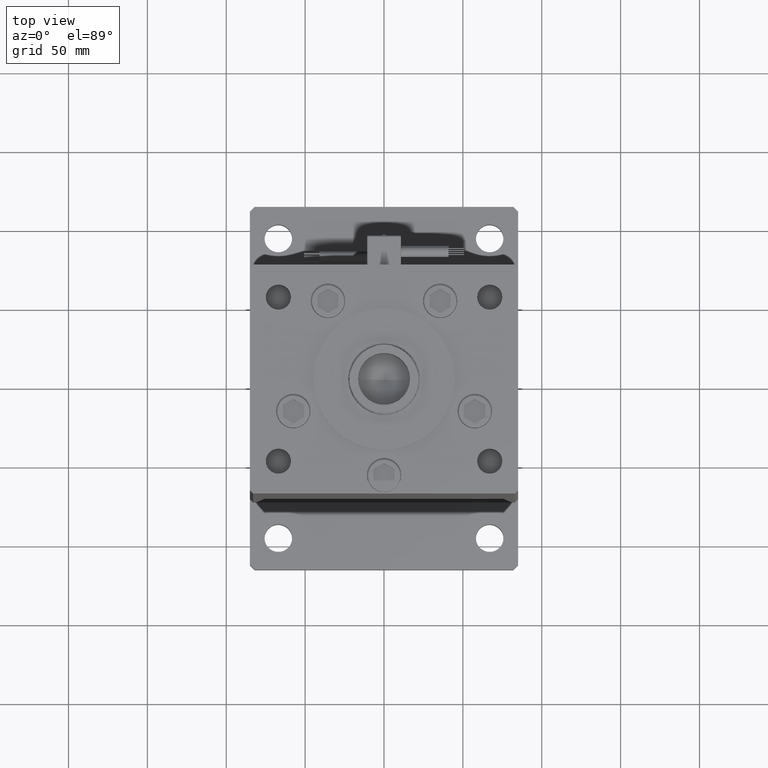
[diagram: clean part render]
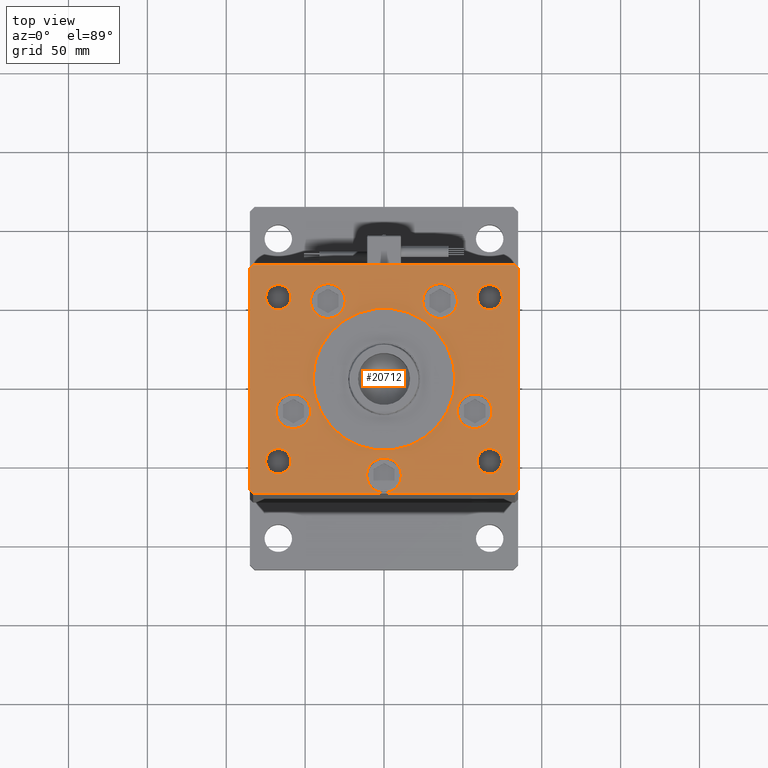
[diagram: same view with one face highlighted and labeled with its STEP entity id]
A machine part, top view. The second image highlights one B-rep face of the part: STEP entity #20712.
In plain terms, the highlighted planar face has unit normal (0, 0, 1).
Its self-contained STEP definition (entity closure, byte-faithful):
#442 = DIRECTION ( 'NONE',  ( 0.000000000000000000, 1.000000000000000000, 0.000000000000000000 ) ) ;
#699 = CARTESIAN_POINT ( 'NONE',  ( -85.00000000000000000, 70.50000000000000000, 0.000000000000000000 ) ) ;
#1065 = CARTESIAN_POINT ( 'NONE',  ( -67.00000000000000000, -52.00000000000000711, 0.000000000000000000 ) ) ;
#1173 = EDGE_CURVE ( 'NONE', #25591, #26150, #37152, .T. ) ;
#1296 = FACE_BOUND ( 'NONE', #20714, .T. ) ;
#1529 = EDGE_LOOP ( 'NONE', ( #56427, #34696 ) ) ;
#1839 = CARTESIAN_POINT ( 'NONE',  ( -75.00000000000000000, -52.00000000000000711, 0.000000000000000000 ) ) ;
#1942 = DIRECTION ( 'NONE',  ( -0.7071067811865500152, 0.7071067811865451302, 0.000000000000000000 ) ) ;
#1954 = CARTESIAN_POINT ( 'NONE',  ( -83.00000000000001421, -72.50000000000004263, 0.000000000000000000 ) ) ;
#2006 = DIRECTION ( 'NONE',  ( 1.000000000000000000, 0.000000000000000000, 0.000000000000000000 ) ) ;
#2335 = EDGE_CURVE ( 'NONE', #49212, #42821, #39897, .T. ) ;
#2619 = VECTOR ( 'NONE', #23576, 1000.000000000000000 ) ;
#3224 = AXIS2_PLACEMENT_3D ( 'NONE', #47238, #46953, #42116 ) ;
#3303 = CIRCLE ( 'NONE', #35163, 8.000000000000000000 ) ;
#3362 = EDGE_CURVE ( 'NONE', #26391, #38375, #32176, .T. ) ;
#3395 = DIRECTION ( 'NONE',  ( -1.000000000000000000, 0.000000000000000000, 0.000000000000000000 ) ) ;
#3400 = LINE ( 'NONE', #4231, #9441 ) ;
#3614 = CIRCLE ( 'NONE', #30939, 45.00000000000000711 ) ;
#3973 = ORIENTED_EDGE ( 'NONE', *, *, #10430, .F. ) ;
#4231 = CARTESIAN_POINT ( 'NONE',  ( -82.99999999999998579, 72.49999999999998579, 0.000000000000000000 ) ) ;
#4471 = VECTOR ( 'NONE', #442, 1000.000000000000000 ) ;
#4727 = DIRECTION ( 'NONE',  ( 1.000000000000000000, 0.000000000000000000, 0.000000000000000000 ) ) ;
#5238 = CARTESIAN_POINT ( 'NONE',  ( 45.00000000000000711, -1.427983307744138033E-15, 0.000000000000000000 ) ) ;
#5486 = CARTESIAN_POINT ( 'NONE',  ( -46.56063263990113654, 49.56249999999997868, 0.000000000000000000 ) ) ;
#5493 = DIRECTION ( 'NONE',  ( 0.7071067811865474617, -0.7071067811865474617, 0.000000000000000000 ) ) ;
#6218 = VERTEX_POINT ( 'NONE', #1839 ) ;
#6237 = AXIS2_PLACEMENT_3D ( 'NONE', #12251, #28532, #6854 ) ;
#6724 = CIRCLE ( 'NONE', #28598, 8.000000000000007105 ) ;
#6854 = DIRECTION ( 'NONE',  ( 1.000000000000000000, 0.000000000000000000, 0.000000000000000000 ) ) ;
#7080 = CIRCLE ( 'NONE', #20775, 11.00000000000000000 ) ;
#7280 = CARTESIAN_POINT ( 'NONE',  ( 59.00000000000000000, -52.00000000000000711, 0.000000000000000000 ) ) ;
#7405 = VERTEX_POINT ( 'NONE', #49805 ) ;
#7486 = EDGE_CURVE ( 'NONE', #56016, #6218, #20982, .T. ) ;
#7557 = DIRECTION ( 'NONE',  ( 0.000000000000000000, 0.000000000000000000, 1.000000000000000000 ) ) ;
#7803 = ORIENTED_EDGE ( 'NONE', *, *, #12378, .T. ) ;
#8156 = CARTESIAN_POINT ( 'NONE',  ( -24.56063263990113299, 49.56249999999997868, 0.000000000000000000 ) ) ;
#8394 = EDGE_CURVE ( 'NONE', #53812, #15145, #10054, .T. ) ;
#8670 = CARTESIAN_POINT ( 'NONE',  ( -45.00000000000000711, -6.938893903907228378E-15, 0.000000000000000000 ) ) ;
#8973 = DIRECTION ( 'NONE',  ( 0.000000000000000000, 0.000000000000000000, 1.000000000000000000 ) ) ;
#9117 = VERTEX_POINT ( 'NONE', #51644 ) ;
#9290 = FACE_BOUND ( 'NONE', #19258, .T. ) ;
#9441 = VECTOR ( 'NONE', #51575, 1000.000000000000000 ) ;
#9794 = VERTEX_POINT ( 'NONE', #29995 ) ;
#9852 = VERTEX_POINT ( 'NONE', #26534 ) ;
#10043 = ORIENTED_EDGE ( 'NONE', *, *, #54907, .F. ) ;
#10054 = CIRCLE ( 'NONE', #52877, 10.99999999999999645 ) ;
#10420 = CIRCLE ( 'NONE', #36856, 10.99999999999999645 ) ;
#10430 = EDGE_CURVE ( 'NONE', #15145, #53812, #43845, .T. ) ;
#10709 = ORIENTED_EDGE ( 'NONE', *, *, #1173, .F. ) ;
#10766 = DIRECTION ( 'NONE',  ( 1.000000000000000000, 0.000000000000000000, 0.000000000000000000 ) ) ;
#10781 = LINE ( 'NONE', #23612, #16889 ) ;
#10865 = CARTESIAN_POINT ( 'NONE',  ( -75.00000000000000000, 52.00000000000001421, 0.000000000000000000 ) ) ;
#11308 = DIRECTION ( 'NONE',  ( 0.000000000000000000, 0.000000000000000000, 1.000000000000000000 ) ) ;
#11455 = ORIENTED_EDGE ( 'NONE', *, *, #15481, .T. ) ;
#11545 = EDGE_CURVE ( 'NONE', #40851, #21807, #47667, .T. ) ;
#11843 = DIRECTION ( 'NONE',  ( 1.000000000000000000, 0.000000000000000000, 0.000000000000000000 ) ) ;
#12251 = CARTESIAN_POINT ( 'NONE',  ( -35.56063263990113654, 49.56249999999997868, 0.000000000000000000 ) ) ;
#12378 = EDGE_CURVE ( 'NONE', #32881, #54691, #10781, .T. ) ;
#12721 = EDGE_CURVE ( 'NONE', #9852, #21651, #41136, .T. ) ;
#13139 = CARTESIAN_POINT ( 'NONE',  ( 68.51135153650587029, -20.33333333333332504, 0.000000000000000000 ) ) ;
#13907 = AXIS2_PLACEMENT_3D ( 'NONE', #28523, #45639, #2006 ) ;
#14123 = FACE_BOUND ( 'NONE', #24548, .T. ) ;
#14500 = DIRECTION ( 'NONE',  ( 1.000000000000000000, 5.852079196066335998E-16, 0.000000000000000000 ) ) ;
#14783 = ORIENTED_EDGE ( 'NONE', *, *, #36910, .F. ) ;
#14854 = DIRECTION ( 'NONE',  ( 1.000000000000000000, 0.000000000000000000, 0.000000000000000000 ) ) ;
#14897 = ORIENTED_EDGE ( 'NONE', *, *, #45119, .T. ) ;
#15145 = VERTEX_POINT ( 'NONE', #13139 ) ;
#15481 = EDGE_CURVE ( 'NONE', #21651, #9852, #35738, .T. ) ;
#15504 = ORIENTED_EDGE ( 'NONE', *, *, #35463, .F. ) ;
#15743 = VERTEX_POINT ( 'NONE', #29849 ) ;
#16082 = DIRECTION ( 'NONE',  ( 1.000000000000000000, 0.000000000000000000, 0.000000000000000000 ) ) ;
#16292 = AXIS2_PLACEMENT_3D ( 'NONE', #28708, #11308, #28137 ) ;
#16889 = VECTOR ( 'NONE', #1942, 1000.000000000000114 ) ;
#17212 = ORIENTED_EDGE ( 'NONE', *, *, #44486, .F. ) ;
#17615 = AXIS2_PLACEMENT_3D ( 'NONE', #20959, #34062, #39669 ) ;
#18158 = EDGE_CURVE ( 'NONE', #47960, #38260, #21275, .T. ) ;
#18446 = DIRECTION ( 'NONE',  ( 0.000000000000000000, 0.000000000000000000, 1.000000000000000000 ) ) ;
#18692 = DIRECTION ( 'NONE',  ( 1.000000000000000000, 0.000000000000000000, 0.000000000000000000 ) ) ;
#18716 = DIRECTION ( 'NONE',  ( 1.000000000000000000, 0.000000000000000000, 0.000000000000000000 ) ) ;
#18725 = LINE ( 'NONE', #53228, #2619 ) ;
#18882 = ORIENTED_EDGE ( 'NONE', *, *, #2335, .F. ) ;
#19140 = AXIS2_PLACEMENT_3D ( 'NONE', #40395, #36971, #18716 ) ;
#19149 = EDGE_CURVE ( 'NONE', #15743, #7405, #6724, .T. ) ;
#19258 = EDGE_LOOP ( 'NONE', ( #18882, #15504 ) ) ;
#19998 = CIRCLE ( 'NONE', #47310, 7.999999999999992895 ) ;
#20008 = CARTESIAN_POINT ( 'NONE',  ( 83.00000000000001421, 72.50000000000002842, 0.000000000000000000 ) ) ;
#20563 = EDGE_CURVE ( 'NONE', #54480, #23411, #10420, .T. ) ;
#20712 = ADVANCED_FACE ( 'NONE', ( #48361, #9290, #26121, #1296, #26678, #44638, #30966, #14123, #22958, #35790, #30687 ), #43802, .T. ) ;
#20714 = EDGE_LOOP ( 'NONE', ( #3973, #29125 ) ) ;
#20775 = AXIS2_PLACEMENT_3D ( 'NONE', #22362, #8973, #35196 ) ;
#20959 = CARTESIAN_POINT ( 'NONE',  ( 0.000000000000000000, -6.938893903907228378E-15, 0.000000000000000000 ) ) ;
#20982 = CIRCLE ( 'NONE', #19140, 8.000000000000000000 ) ;
#21038 = DIRECTION ( 'NONE',  ( 0.000000000000000000, 0.000000000000000000, 1.000000000000000000 ) ) ;
#21248 = ORIENTED_EDGE ( 'NONE', *, *, #37361, .T. ) ;
#21275 = CIRCLE ( 'NONE', #53117, 7.999999999999992895 ) ;
#21429 = CARTESIAN_POINT ( 'NONE',  ( 83.00000000000001421, -72.49999999999994316, 0.000000000000000000 ) ) ;
#21557 = DIRECTION ( 'NONE',  ( 1.000000000000000000, 0.000000000000000000, 0.000000000000000000 ) ) ;
#21651 = VERTEX_POINT ( 'NONE', #7280 ) ;
#21807 = VERTEX_POINT ( 'NONE', #8670 ) ;
#22012 = DIRECTION ( 'NONE',  ( -1.000000000000000000, 0.000000000000000000, 0.000000000000000000 ) ) ;
#22277 = AXIS2_PLACEMENT_3D ( 'NONE', #36073, #39520, #4727 ) ;
#22289 = DIRECTION ( 'NONE',  ( -0.000000000000000000, -0.000000000000000000, -1.000000000000000000 ) ) ;
#22362 = CARTESIAN_POINT ( 'NONE',  ( 0.000000000000000000, -61.00000000000000000, 0.000000000000000000 ) ) ;
#22641 = VECTOR ( 'NONE', #14500, 1000.000000000000000 ) ;
#22958 = FACE_BOUND ( 'NONE', #52234, .T. ) ;
#22971 = DIRECTION ( 'NONE',  ( 0.000000000000000000, 0.000000000000000000, 1.000000000000000000 ) ) ;
#23024 = CIRCLE ( 'NONE', #13907, 11.00000000000000355 ) ;
#23232 = AXIS2_PLACEMENT_3D ( 'NONE', #31686, #40807, #14854 ) ;
#23411 = VERTEX_POINT ( 'NONE', #23584 ) ;
#23576 = DIRECTION ( 'NONE',  ( 0.000000000000000000, -1.000000000000000000, 0.000000000000000000 ) ) ;
#23584 = CARTESIAN_POINT ( 'NONE',  ( -46.51135153650587029, -20.33333333333332504, 0.000000000000000000 ) ) ;
#23612 = CARTESIAN_POINT ( 'NONE',  ( 85.00000000000001421, 70.50000000000002842, 0.000000000000000000 ) ) ;
#24103 = EDGE_LOOP ( 'NONE', ( #55063, #54837, #24528, #47670, #7803, #47406, #14897, #53020 ) ) ;
#24528 = ORIENTED_EDGE ( 'NONE', *, *, #49601, .T. ) ;
#24548 = EDGE_LOOP ( 'NONE', ( #43374, #17212 ) ) ;
#24926 = VECTOR ( 'NONE', #39651, 1000.000000000000114 ) ;
#25591 = VERTEX_POINT ( 'NONE', #56015 ) ;
#25823 = CARTESIAN_POINT ( 'NONE',  ( 57.51135153650587029, -20.33333333333332504, 0.000000000000000000 ) ) ;
#25867 = CARTESIAN_POINT ( 'NONE',  ( 67.00000000000000000, 52.00000000000000000, 0.000000000000000000 ) ) ;
#26121 = FACE_BOUND ( 'NONE', #1529, .T. ) ;
#26150 = VERTEX_POINT ( 'NONE', #26623 ) ;
#26275 = ORIENTED_EDGE ( 'NONE', *, *, #18158, .T. ) ;
#26283 = CARTESIAN_POINT ( 'NONE',  ( 67.00000000000000000, -52.00000000000000711, 0.000000000000000000 ) ) ;
#26331 = CARTESIAN_POINT ( 'NONE',  ( 57.51135153650587029, -20.33333333333332504, 0.000000000000000000 ) ) ;
#26391 = VERTEX_POINT ( 'NONE', #50847 ) ;
#26534 = CARTESIAN_POINT ( 'NONE',  ( 75.00000000000001421, -52.00000000000000711, 0.000000000000000000 ) ) ;
#26598 = EDGE_CURVE ( 'NONE', #9794, #9117, #38754, .T. ) ;
#26623 = CARTESIAN_POINT ( 'NONE',  ( 11.00000000000000000, -61.00000000000000000, 0.000000000000000000 ) ) ;
#26678 = FACE_BOUND ( 'NONE', #45452, .T. ) ;
#27176 = LINE ( 'NONE', #44575, #55805 ) ;
#27442 = VERTEX_POINT ( 'NONE', #41673 ) ;
#28137 = DIRECTION ( 'NONE',  ( 1.000000000000000000, 0.000000000000000000, 0.000000000000000000 ) ) ;
#28207 = CARTESIAN_POINT ( 'NONE',  ( -59.00000000000000711, 52.00000000000001421, 0.000000000000000000 ) ) ;
#28523 = CARTESIAN_POINT ( 'NONE',  ( 35.56063263990113654, 49.56249999999997868, 0.000000000000000000 ) ) ;
#28532 = DIRECTION ( 'NONE',  ( 0.000000000000000000, 0.000000000000000000, 1.000000000000000000 ) ) ;
#28598 = AXIS2_PLACEMENT_3D ( 'NONE', #25867, #21038, #43265 ) ;
#28708 = CARTESIAN_POINT ( 'NONE',  ( -35.56063263990113654, 49.56249999999997868, 0.000000000000000000 ) ) ;
#29125 = ORIENTED_EDGE ( 'NONE', *, *, #8394, .F. ) ;
#29297 = AXIS2_PLACEMENT_3D ( 'NONE', #26283, #22289, #22012 ) ;
#29607 = CIRCLE ( 'NONE', #3224, 10.99999999999999645 ) ;
#29849 = CARTESIAN_POINT ( 'NONE',  ( 75.00000000000001421, 52.00000000000000000, 0.000000000000000000 ) ) ;
#29995 = CARTESIAN_POINT ( 'NONE',  ( 46.56063263990113654, 49.56249999999997868, 0.000000000000000000 ) ) ;
#30687 = FACE_BOUND ( 'NONE', #34881, .T. ) ;
#30939 = AXIS2_PLACEMENT_3D ( 'NONE', #46637, #7557, #11843 ) ;
#30966 = FACE_BOUND ( 'NONE', #50703, .T. ) ;
#31686 = CARTESIAN_POINT ( 'NONE',  ( 35.56063263990113654, 49.56249999999997868, 0.000000000000000000 ) ) ;
#32176 = LINE ( 'NONE', #1954, #22641 ) ;
#32465 = VERTEX_POINT ( 'NONE', #55193 ) ;
#32532 = EDGE_CURVE ( 'NONE', #26150, #25591, #7080, .T. ) ;
#32881 = VERTEX_POINT ( 'NONE', #36250 ) ;
#33093 = DIRECTION ( 'NONE',  ( -0.000000000000000000, -0.000000000000000000, -1.000000000000000000 ) ) ;
#34062 = DIRECTION ( 'NONE',  ( 0.000000000000000000, 0.000000000000000000, 1.000000000000000000 ) ) ;
#34408 = AXIS2_PLACEMENT_3D ( 'NONE', #37751, #55139, #16082 ) ;
#34696 = ORIENTED_EDGE ( 'NONE', *, *, #47197, .F. ) ;
#34881 = EDGE_LOOP ( 'NONE', ( #47323, #11455 ) ) ;
#35163 = AXIS2_PLACEMENT_3D ( 'NONE', #1065, #18446, #52205 ) ;
#35196 = DIRECTION ( 'NONE',  ( 1.000000000000000000, 0.000000000000000000, 0.000000000000000000 ) ) ;
#35320 = DIRECTION ( 'NONE',  ( -1.000000000000000000, 0.000000000000000000, 0.000000000000000000 ) ) ;
#35399 = EDGE_CURVE ( 'NONE', #40839, #32465, #18725, .T. ) ;
#35463 = EDGE_CURVE ( 'NONE', #42821, #49212, #40870, .T. ) ;
#35732 = EDGE_CURVE ( 'NONE', #27442, #32881, #36337, .T. ) ;
#35738 = CIRCLE ( 'NONE', #52122, 8.000000000000007105 ) ;
#35790 = FACE_OUTER_BOUND ( 'NONE', #24103, .T. ) ;
#36073 = CARTESIAN_POINT ( 'NONE',  ( 0.000000000000000000, 0.000000000000000000, 0.000000000000000000 ) ) ;
#36250 = CARTESIAN_POINT ( 'NONE',  ( 85.00000000000001421, 70.50000000000002842, 0.000000000000000000 ) ) ;
#36337 = LINE ( 'NONE', #48899, #4471 ) ;
#36856 = AXIS2_PLACEMENT_3D ( 'NONE', #54386, #54674, #10766 ) ;
#36910 = EDGE_CURVE ( 'NONE', #21807, #40851, #3614, .T. ) ;
#36971 = DIRECTION ( 'NONE',  ( 0.000000000000000000, 0.000000000000000000, 1.000000000000000000 ) ) ;
#37152 = CIRCLE ( 'NONE', #34408, 11.00000000000000000 ) ;
#37182 = ORIENTED_EDGE ( 'NONE', *, *, #7486, .F. ) ;
#37361 = EDGE_CURVE ( 'NONE', #38260, #47960, #19998, .T. ) ;
#37508 = AXIS2_PLACEMENT_3D ( 'NONE', #26331, #39174, #44006 ) ;
#37751 = CARTESIAN_POINT ( 'NONE',  ( 0.000000000000000000, -61.00000000000000000, 0.000000000000000000 ) ) ;
#38185 = DIRECTION ( 'NONE',  ( -0.000000000000000000, -0.000000000000000000, -1.000000000000000000 ) ) ;
#38260 = VERTEX_POINT ( 'NONE', #10865 ) ;
#38375 = VERTEX_POINT ( 'NONE', #51057 ) ;
#38464 = CARTESIAN_POINT ( 'NONE',  ( -59.00000000000000711, -52.00000000000000711, 0.000000000000000000 ) ) ;
#38754 = CIRCLE ( 'NONE', #23232, 11.00000000000000355 ) ;
#38816 = LINE ( 'NONE', #21429, #24926 ) ;
#39174 = DIRECTION ( 'NONE',  ( 0.000000000000000000, 0.000000000000000000, 1.000000000000000000 ) ) ;
#39226 = CARTESIAN_POINT ( 'NONE',  ( -68.51135153650587029, -20.33333333333332504, 0.000000000000000000 ) ) ;
#39520 = DIRECTION ( 'NONE',  ( -0.000000000000000000, 0.000000000000000000, 1.000000000000000000 ) ) ;
#39602 = DIRECTION ( 'NONE',  ( -0.000000000000000000, -0.000000000000000000, -1.000000000000000000 ) ) ;
#39651 = DIRECTION ( 'NONE',  ( 0.7071067811865474617, 0.7071067811865474617, 0.000000000000000000 ) ) ;
#39669 = DIRECTION ( 'NONE',  ( 1.000000000000000000, 0.000000000000000000, 0.000000000000000000 ) ) ;
#39809 = CARTESIAN_POINT ( 'NONE',  ( 67.00000000000000000, 52.00000000000000000, 0.000000000000000000 ) ) ;
#39897 = CIRCLE ( 'NONE', #6237, 11.00000000000000000 ) ;
#40178 = VECTOR ( 'NONE', #55356, 1000.000000000000000 ) ;
#40395 = CARTESIAN_POINT ( 'NONE',  ( -67.00000000000000000, -52.00000000000000711, 0.000000000000000000 ) ) ;
#40807 = DIRECTION ( 'NONE',  ( 0.000000000000000000, 0.000000000000000000, 1.000000000000000000 ) ) ;
#40839 = VERTEX_POINT ( 'NONE', #699 ) ;
#40851 = VERTEX_POINT ( 'NONE', #5238 ) ;
#40870 = CIRCLE ( 'NONE', #16292, 11.00000000000000000 ) ;
#41136 = CIRCLE ( 'NONE', #29297, 8.000000000000007105 ) ;
#41673 = CARTESIAN_POINT ( 'NONE',  ( 85.00000000000001421, -70.49999999999994316, 0.000000000000000000 ) ) ;
#42116 = DIRECTION ( 'NONE',  ( 1.000000000000000000, 0.000000000000000000, 0.000000000000000000 ) ) ;
#42261 = EDGE_CURVE ( 'NONE', #54691, #53355, #45957, .T. ) ;
#42821 = VERTEX_POINT ( 'NONE', #5486 ) ;
#43055 = ORIENTED_EDGE ( 'NONE', *, *, #32532, .F. ) ;
#43221 = DIRECTION ( 'NONE',  ( 0.000000000000000000, 0.000000000000000000, 1.000000000000000000 ) ) ;
#43265 = DIRECTION ( 'NONE',  ( 1.000000000000000000, 0.000000000000000000, 0.000000000000000000 ) ) ;
#43374 = ORIENTED_EDGE ( 'NONE', *, *, #19149, .F. ) ;
#43802 = PLANE ( 'NONE',  #22277 ) ;
#43845 = CIRCLE ( 'NONE', #37508, 10.99999999999999645 ) ;
#44006 = DIRECTION ( 'NONE',  ( 1.000000000000000000, 0.000000000000000000, 0.000000000000000000 ) ) ;
#44486 = EDGE_CURVE ( 'NONE', #7405, #15743, #55850, .T. ) ;
#44575 = CARTESIAN_POINT ( 'NONE',  ( -85.00000000000000000, -70.50000000000004263, 0.000000000000000000 ) ) ;
#44638 = FACE_BOUND ( 'NONE', #50072, .T. ) ;
#44904 = CARTESIAN_POINT ( 'NONE',  ( -82.99999999999998579, 72.49999999999998579, 0.000000000000000000 ) ) ;
#45119 = EDGE_CURVE ( 'NONE', #53355, #40839, #3400, .T. ) ;
#45452 = EDGE_LOOP ( 'NONE', ( #43055, #10709 ) ) ;
#45570 = EDGE_LOOP ( 'NONE', ( #14783, #47388 ) ) ;
#45639 = DIRECTION ( 'NONE',  ( 0.000000000000000000, 0.000000000000000000, 1.000000000000000000 ) ) ;
#45687 = CARTESIAN_POINT ( 'NONE',  ( 83.00000000000001421, 72.50000000000002842, 0.000000000000000000 ) ) ;
#45957 = LINE ( 'NONE', #20008, #40178 ) ;
#46217 = DIRECTION ( 'NONE',  ( -1.000000000000000000, 0.000000000000000000, 0.000000000000000000 ) ) ;
#46637 = CARTESIAN_POINT ( 'NONE',  ( 0.000000000000000000, -6.938893903907228378E-15, 0.000000000000000000 ) ) ;
#46745 = AXIS2_PLACEMENT_3D ( 'NONE', #39809, #22971, #18692 ) ;
#46746 = CARTESIAN_POINT ( 'NONE',  ( 67.00000000000000000, -52.00000000000000711, 0.000000000000000000 ) ) ;
#46892 = EDGE_CURVE ( 'NONE', #32465, #26391, #27176, .T. ) ;
#46953 = DIRECTION ( 'NONE',  ( 0.000000000000000000, 0.000000000000000000, 1.000000000000000000 ) ) ;
#47197 = EDGE_CURVE ( 'NONE', #9117, #9794, #23024, .T. ) ;
#47238 = CARTESIAN_POINT ( 'NONE',  ( -57.51135153650587029, -20.33333333333332504, 0.000000000000000000 ) ) ;
#47310 = AXIS2_PLACEMENT_3D ( 'NONE', #52714, #39602, #35320 ) ;
#47323 = ORIENTED_EDGE ( 'NONE', *, *, #12721, .T. ) ;
#47388 = ORIENTED_EDGE ( 'NONE', *, *, #11545, .F. ) ;
#47406 = ORIENTED_EDGE ( 'NONE', *, *, #42261, .T. ) ;
#47667 = CIRCLE ( 'NONE', #17615, 45.00000000000000711 ) ;
#47670 = ORIENTED_EDGE ( 'NONE', *, *, #35732, .T. ) ;
#47960 = VERTEX_POINT ( 'NONE', #28207 ) ;
#48361 = FACE_BOUND ( 'NONE', #45570, .T. ) ;
#48899 = CARTESIAN_POINT ( 'NONE',  ( 85.00000000000001421, -70.49999999999994316, 0.000000000000000000 ) ) ;
#49212 = VERTEX_POINT ( 'NONE', #8156 ) ;
#49601 = EDGE_CURVE ( 'NONE', #38375, #27442, #38816, .T. ) ;
#49805 = CARTESIAN_POINT ( 'NONE',  ( 59.00000000000000000, 52.00000000000000000, 0.000000000000000000 ) ) ;
#49902 = ORIENTED_EDGE ( 'NONE', *, *, #53113, .F. ) ;
#49970 = CARTESIAN_POINT ( 'NONE',  ( 46.51135153650587029, -20.33333333333332504, 0.000000000000000000 ) ) ;
#50072 = EDGE_LOOP ( 'NONE', ( #49902, #53722 ) ) ;
#50703 = EDGE_LOOP ( 'NONE', ( #26275, #21248 ) ) ;
#50847 = CARTESIAN_POINT ( 'NONE',  ( -83.00000000000001421, -72.50000000000004263, 0.000000000000000000 ) ) ;
#51057 = CARTESIAN_POINT ( 'NONE',  ( 83.00000000000001421, -72.49999999999994316, 0.000000000000000000 ) ) ;
#51575 = DIRECTION ( 'NONE',  ( -0.7071067811865549002, -0.7071067811865401342, 0.000000000000000000 ) ) ;
#51644 = CARTESIAN_POINT ( 'NONE',  ( 24.56063263990113299, 49.56249999999997868, 0.000000000000000000 ) ) ;
#52122 = AXIS2_PLACEMENT_3D ( 'NONE', #46746, #38185, #3395 ) ;
#52205 = DIRECTION ( 'NONE',  ( 1.000000000000000000, 0.000000000000000000, 0.000000000000000000 ) ) ;
#52234 = EDGE_LOOP ( 'NONE', ( #37182, #10043 ) ) ;
#52714 = CARTESIAN_POINT ( 'NONE',  ( -67.00000000000000000, 52.00000000000001421, 0.000000000000000000 ) ) ;
#52877 = AXIS2_PLACEMENT_3D ( 'NONE', #25823, #43221, #21557 ) ;
#53020 = ORIENTED_EDGE ( 'NONE', *, *, #35399, .T. ) ;
#53113 = EDGE_CURVE ( 'NONE', #23411, #54480, #29607, .T. ) ;
#53117 = AXIS2_PLACEMENT_3D ( 'NONE', #54475, #33093, #46217 ) ;
#53228 = CARTESIAN_POINT ( 'NONE',  ( -85.00000000000000000, 70.50000000000000000, 0.000000000000000000 ) ) ;
#53355 = VERTEX_POINT ( 'NONE', #44904 ) ;
#53722 = ORIENTED_EDGE ( 'NONE', *, *, #20563, .F. ) ;
#53812 = VERTEX_POINT ( 'NONE', #49970 ) ;
#54386 = CARTESIAN_POINT ( 'NONE',  ( -57.51135153650587029, -20.33333333333332504, 0.000000000000000000 ) ) ;
#54475 = CARTESIAN_POINT ( 'NONE',  ( -67.00000000000000000, 52.00000000000001421, 0.000000000000000000 ) ) ;
#54480 = VERTEX_POINT ( 'NONE', #39226 ) ;
#54674 = DIRECTION ( 'NONE',  ( 0.000000000000000000, 0.000000000000000000, 1.000000000000000000 ) ) ;
#54691 = VERTEX_POINT ( 'NONE', #45687 ) ;
#54837 = ORIENTED_EDGE ( 'NONE', *, *, #3362, .T. ) ;
#54907 = EDGE_CURVE ( 'NONE', #6218, #56016, #3303, .T. ) ;
#55063 = ORIENTED_EDGE ( 'NONE', *, *, #46892, .T. ) ;
#55139 = DIRECTION ( 'NONE',  ( 0.000000000000000000, 0.000000000000000000, 1.000000000000000000 ) ) ;
#55193 = CARTESIAN_POINT ( 'NONE',  ( -85.00000000000000000, -70.50000000000004263, 0.000000000000000000 ) ) ;
#55356 = DIRECTION ( 'NONE',  ( -1.000000000000000000, -2.508033941171286997E-16, 0.000000000000000000 ) ) ;
#55805 = VECTOR ( 'NONE', #5493, 1000.000000000000114 ) ;
#55850 = CIRCLE ( 'NONE', #46745, 8.000000000000007105 ) ;
#56015 = CARTESIAN_POINT ( 'NONE',  ( -11.00000000000000000, -61.00000000000000000, 0.000000000000000000 ) ) ;
#56016 = VERTEX_POINT ( 'NONE', #38464 ) ;
#56427 = ORIENTED_EDGE ( 'NONE', *, *, #26598, .F. ) ;